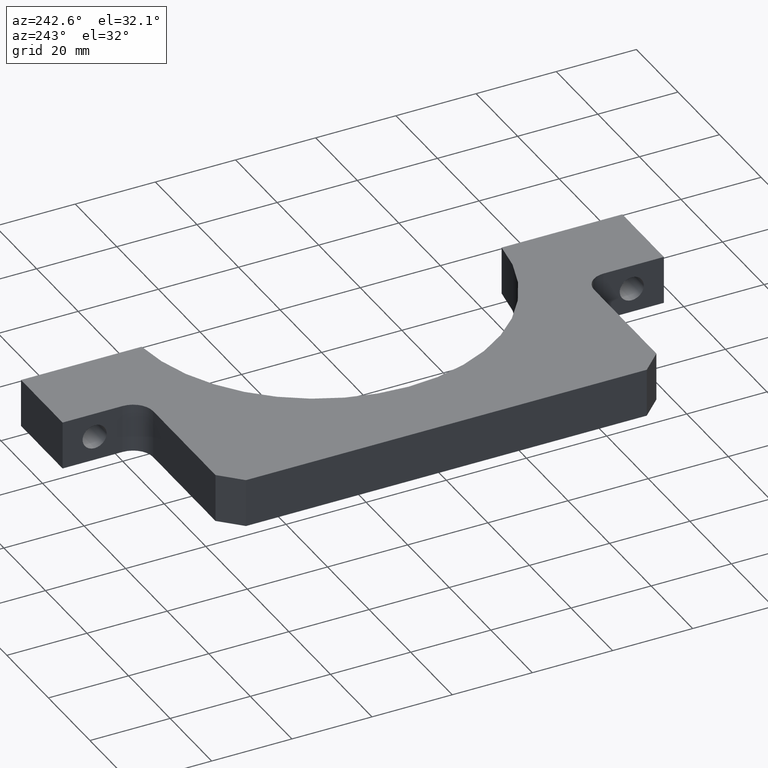
[diagram: clean part render]
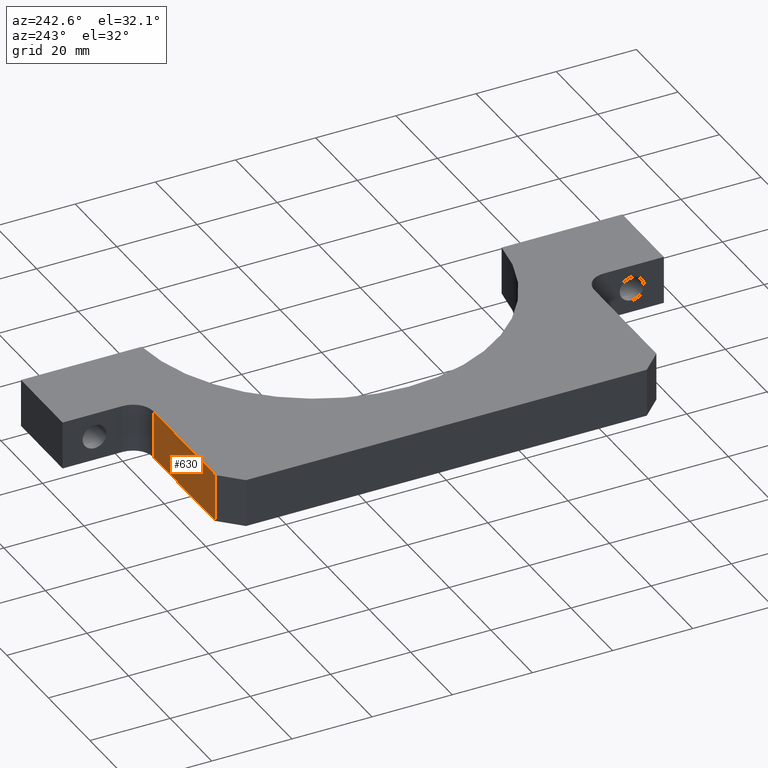
[diagram: same view with one face highlighted and labeled with its STEP entity id]
A machine part, auxiliary view. The second image highlights one B-rep face of the part: STEP entity #630.
In plain terms, the highlighted planar face has unit normal (0, -1, 0).
Its self-contained STEP definition (entity closure, byte-faithful):
#2 = CARTESIAN_POINT ( 'NONE',  ( 0.0000000000000000000, 55.00000000000000700, -6.000000000000000000 ) ) ;
#18 = CARTESIAN_POINT ( 'NONE',  ( 5.000000000000019500, 55.00000000000000700, 6.000000000000000000 ) ) ;
#32 = DIRECTION ( 'NONE',  ( -1.000000000000000000, -0.0000000000000000000, -0.0000000000000000000 ) ) ;
#40 = CARTESIAN_POINT ( 'NONE',  ( 5.000000000000022200, 55.00000000000000700, 6.000000000000000000 ) ) ;
#48 = CARTESIAN_POINT ( 'NONE',  ( 34.99999999999999300, 55.00000000000000700, 6.000000000000000000 ) ) ;
#49 = AXIS2_PLACEMENT_3D ( 'NONE', #65, #53, #51 ) ;
#51 = DIRECTION ( 'NONE',  ( 0.0000000000000000000, -0.0000000000000000000, -1.000000000000000000 ) ) ;
#53 = DIRECTION ( 'NONE',  ( 0.0000000000000000000, -1.000000000000000000, 0.0000000000000000000 ) ) ;
#54 = CARTESIAN_POINT ( 'NONE',  ( 5.000000000000019500, 55.00000000000000700, -6.000000000000000000 ) ) ;
#55 = PLANE ( 'NONE',  #49 ) ;
#65 = CARTESIAN_POINT ( 'NONE',  ( 0.0000000000000000000, 55.00000000000000700, 6.000000000000000000 ) ) ;
#75 = CARTESIAN_POINT ( 'NONE',  ( 0.0000000000000000000, 55.00000000000000700, 6.000000000000000000 ) ) ;
#102 = VECTOR ( 'NONE', #674, 1000.000000000000000 ) ;
#117 = LINE ( 'NONE', #678, #102 ) ;
#118 = LINE ( 'NONE', #75, #120 ) ;
#120 = VECTOR ( 'NONE', #32, 1000.000000000000000 ) ;
#129 = LINE ( 'NONE', #18, #148 ) ;
#142 = LINE ( 'NONE', #2, #147 ) ;
#147 = VECTOR ( 'NONE', #633, 1000.000000000000000 ) ;
#148 = VECTOR ( 'NONE', #203, 1000.000000000000000 ) ;
#155 = FACE_OUTER_BOUND ( 'NONE', #342, .T. ) ;
#203 = DIRECTION ( 'NONE',  ( 0.0000000000000000000, 0.0000000000000000000, 1.000000000000000000 ) ) ;
#342 = EDGE_LOOP ( 'NONE', ( #435, #447, #713, #691 ) ) ;
#418 = VERTEX_POINT ( 'NONE', #443 ) ;
#435 = ORIENTED_EDGE ( 'NONE', *, *, #669, .T. ) ;
#443 = CARTESIAN_POINT ( 'NONE',  ( 34.99999999999999300, 55.00000000000000700, -6.000000000000000000 ) ) ;
#447 = ORIENTED_EDGE ( 'NONE', *, *, #684, .T. ) ;
#630 = ADVANCED_FACE ( 'NONE', ( #155 ), #55, .F. ) ;
#633 = DIRECTION ( 'NONE',  ( -1.000000000000000000, -0.0000000000000000000, -0.0000000000000000000 ) ) ;
#643 = VERTEX_POINT ( 'NONE', #40 ) ;
#644 = VERTEX_POINT ( 'NONE', #48 ) ;
#669 = EDGE_CURVE ( 'NONE', #418, #670, #142, .T. ) ;
#670 = VERTEX_POINT ( 'NONE', #54 ) ;
#674 = DIRECTION ( 'NONE',  ( 0.0000000000000000000, 0.0000000000000000000, -1.000000000000000000 ) ) ;
#678 = CARTESIAN_POINT ( 'NONE',  ( 34.99999999999999300, 55.00000000000000700, -6.000000000000000000 ) ) ;
#684 = EDGE_CURVE ( 'NONE', #670, #643, #129, .T. ) ;
#689 = EDGE_CURVE ( 'NONE', #644, #643, #118, .T. ) ;
#691 = ORIENTED_EDGE ( 'NONE', *, *, #702, .T. ) ;
#702 = EDGE_CURVE ( 'NONE', #644, #418, #117, .T. ) ;
#713 = ORIENTED_EDGE ( 'NONE', *, *, #689, .F. ) ;